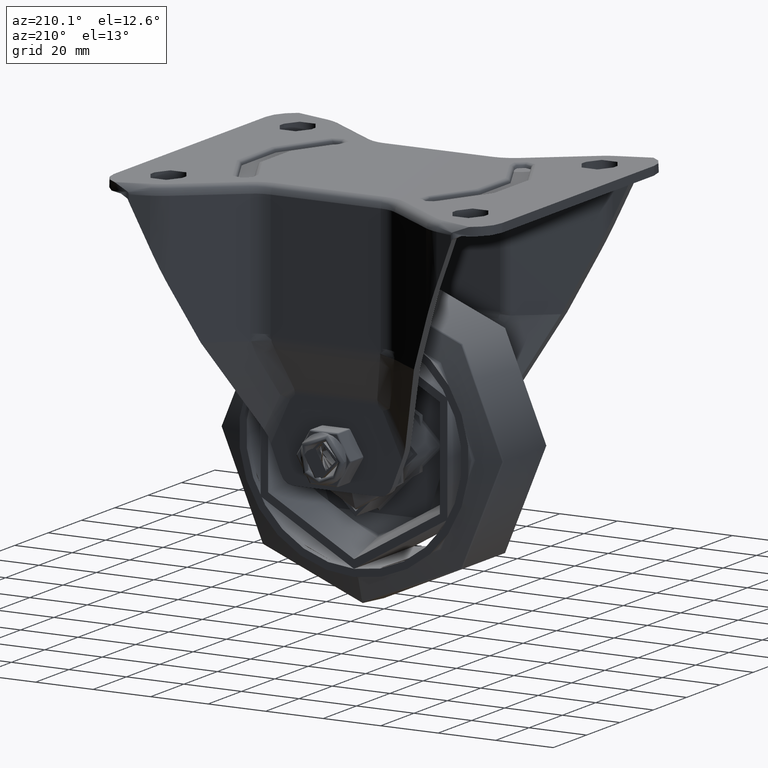
[diagram: clean part render]
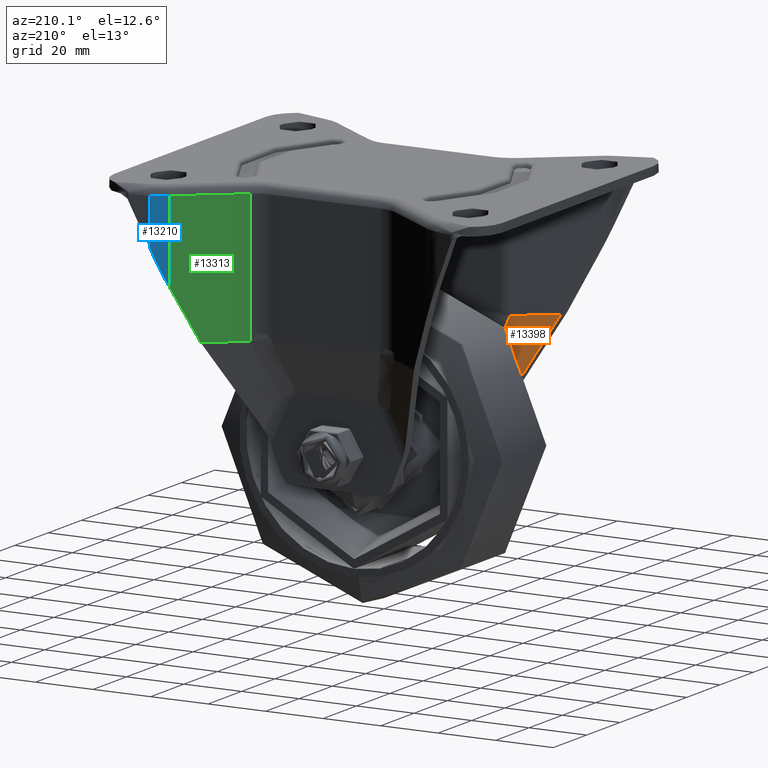
[diagram: same view with three faces highlighted in distinct colors, each labeled with its STEP entity id]
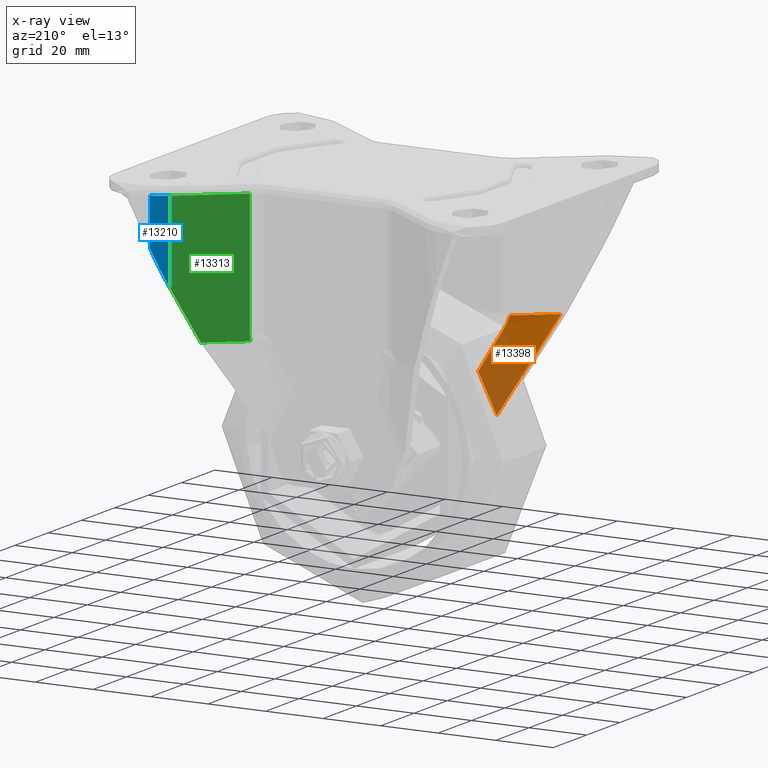
[diagram: x-ray of the same camera — body ghosted, the three highlighted faces saturated]
A machine part, auxiliary view with three faces highlighted in distinct colors.
The next image is the same camera in x-ray (body ghosted, the three faces saturated) — at least one of them is partly hidden behind the body in this view.
Their STEP definitions:

[orange] entity #13398 — the highlighted face is a freeform B-spline surface patch.
#436=B_SPLINE_SURFACE_WITH_KNOTS('',3,3,((#28918,#28919,#28920,#28921,#28922,
#28923,#28924),(#28925,#28926,#28927,#28928,#28929,#28930,#28931),(#28932,
#28933,#28934,#28935,#28936,#28937,#28938),(#28939,#28940,#28941,#28942,
#28943,#28944,#28945)),.UNSPECIFIED.,.F.,.F.,.F.,(4,4),(4,3,4),(0.,0.911532845210306),
(-0.000735062754812187,0.,0.971008509105159),.UNSPECIFIED.);
#1073=B_SPLINE_CURVE_WITH_KNOTS('',3,(#27915,#27916,#27917,#27918,#27919,
#27920,#27921,#27922),.UNSPECIFIED.,.F.,.F.,(4,2,2,4),(-0.00269783726248194,
-0.00178558597487094,-0.000788636968720414,-1.35210787664546E-5),
 .UNSPECIFIED.);
#1080=B_SPLINE_CURVE_WITH_KNOTS('',3,(#28947,#28948,#28949,#28950,#28951,
#28952,#28953,#28954,#28955,#28956),.UNSPECIFIED.,.F.,.F.,(4,2,2,2,4),(-0.014500870045644,
-0.00959288326135269,-0.00483362334931264,-0.00185908590428761,-1.14696131254162E-12),
 .UNSPECIFIED.);
#1081=B_SPLINE_CURVE_WITH_KNOTS('',3,(#28957,#28958,#28959,#28960,#28961,
#28962,#28963,#28964,#28965,#28966,#28967,#28968,#28969,#28970,#28971,#28972,
#28973,#28974,#28975,#28976,#28977,#28978,#28979,#28980,#28981,#28982,#28983,
#28984,#28985,#28986,#28987,#28988,#28989,#28990),.UNSPECIFIED.,.F.,.F.,
(4,3,3,3,3,3,3,3,3,3,3,4),(-0.0171500907924866,-0.0159287157768912,-0.0146462646759079,
-0.013322968069946,-0.0119346563959918,-0.0116755686776362,-0.00942650823116136,
-0.00715574318536571,-0.0058830384809795,-0.00344401637031448,-0.00226270710806904,
0.),.UNSPECIFIED.);
#1603=ELLIPSE('',#14534,0.68770137886881,0.528787078670853);
#1839=FACE_OUTER_BOUND('',#2676,.T.);
#2676=EDGE_LOOP('',(#10144,#10145,#10146,#10147,#10148,#10149,#10150));
#3557=LINE('',#19808,#4416);
#3640=LINE('',#24983,#4499);
#3658=LINE('',#27924,#4517);
#4416=VECTOR('',#16008,1000.);
#4499=VECTOR('',#16303,1000.);
#4517=VECTOR('',#16379,10.);
#5881=VERTEX_POINT('',#19805);
#5882=VERTEX_POINT('',#19807);
#5978=VERTEX_POINT('',#24981);
#6000=VERTEX_POINT('',#27913);
#6001=VERTEX_POINT('',#27914);
#6002=VERTEX_POINT('',#27923);
#6010=VERTEX_POINT('',#28946);
#7306=EDGE_CURVE('',#5881,#5882,#3557,.T.);
#7484=EDGE_CURVE('',#5881,#5978,#3640,.T.);
#7531=EDGE_CURVE('',#6000,#6001,#1073,.T.);
#7532=EDGE_CURVE('',#6001,#6002,#3658,.T.);
#7535=EDGE_CURVE('',#6002,#5978,#1603,.T.);
#7548=EDGE_CURVE('',#5882,#6010,#1080,.T.);
#7549=EDGE_CURVE('',#6010,#6000,#1081,.T.);
#10144=ORIENTED_EDGE('',*,*,#7548,.F.);
#10145=ORIENTED_EDGE('',*,*,#7306,.F.);
#10146=ORIENTED_EDGE('',*,*,#7484,.T.);
#10147=ORIENTED_EDGE('',*,*,#7535,.F.);
#10148=ORIENTED_EDGE('',*,*,#7532,.F.);
#10149=ORIENTED_EDGE('',*,*,#7531,.F.);
#10150=ORIENTED_EDGE('',*,*,#7549,.F.);
#13398=ADVANCED_FACE('',(#1839),#436,.T.);
#14534=AXIS2_PLACEMENT_3D('',#28030,#16382,#16383);
#16008=DIRECTION('',(0.357625806770445,0.449329672612695,-0.818661485378149));
#16303=DIRECTION('',(0.798041368930957,0.602602666335625,0.));
#16379=DIRECTION('',(-0.0951685898180181,-0.17735766607067,0.979534173879612));
#16382=DIRECTION('center_axis',(-0.600375902171138,0.795215730268854,0.0847391198040507));
#16383=DIRECTION('ref_axis',(-0.215162910905712,-0.262674973355881,0.940588528604867));
#19805=CARTESIAN_POINT('',(-37.0736842105259,-42.2401975779487,-48.5));
#19807=CARTESIAN_POINT('',(-24.1505953238113,-26.0033176082113,-78.0829745599499));
#19808=CARTESIAN_POINT('',(-37.0736842105259,-42.2401975779487,-48.5));
#24981=CARTESIAN_POINT('',(-24.7612659389834,-32.9430654137226,-48.5));
#24983=CARTESIAN_POINT('',(-14.854746810448,-25.4626326023796,-48.5));
#27913=CARTESIAN_POINT('',(-24.0783409680292,-32.1488740330452,-50.9420640327268));
#27914=CARTESIAN_POINT('',(-24.7086456063164,-32.9033243316156,-48.5000684487369));
#27915=CARTESIAN_POINT('Ctrl Pts',(-24.0783409680292,-32.1488740330452,
-50.9420640327269));
#27916=CARTESIAN_POINT('Ctrl Pts',(-24.1913904864551,-32.263530628627,-50.6841292392895));
#27917=CARTESIAN_POINT('Ctrl Pts',(-24.2916717076381,-32.3702651102411,
-50.4169537476059));
#27918=CARTESIAN_POINT('Ctrl Pts',(-24.4711433745801,-32.5723705070917,
-49.8440775787974));
#27919=CARTESIAN_POINT('Ctrl Pts',(-24.5474515340327,-32.6657077345469,
-49.5371557458694));
#27920=CARTESIAN_POINT('Ctrl Pts',(-24.6507544817582,-32.8063516705401,
-48.9858972124729));
#27921=CARTESIAN_POINT('Ctrl Pts',(-24.6849328416757,-32.8592070667624,
-48.7433867433074));
#27922=CARTESIAN_POINT('Ctrl Pts',(-24.7086455962577,-32.9033243231716,
-48.5000684484094));
#27923=CARTESIAN_POINT('',(-24.7091282409949,-32.9042228369908,-48.4951045381734));
#27924=CARTESIAN_POINT('',(-24.7086522709864,-32.9033367416968,-48.4999999556765));
#28030=CARTESIAN_POINT('Origin',(-24.7980277425615,-33.0421950714408,-47.8301763061915));
#28918=CARTESIAN_POINT('Ctrl Pts',(-37.0834779545459,-42.2525026736965,
-48.4775805859782));
#28919=CARTESIAN_POINT('Ctrl Pts',(-37.0802133732059,-42.2484009751139,
-48.4850537239855));
#28920=CARTESIAN_POINT('Ctrl Pts',(-37.0769487918659,-42.2442992765313,
-48.4925268619927));
#28921=CARTESIAN_POINT('Ctrl Pts',(-37.0736842105259,-42.2401975779487,
-48.5));
#28922=CARTESIAN_POINT('Ctrl Pts',(-32.761213963509,-36.8219061471855,-58.3719198425691));
#28923=CARTESIAN_POINT('Ctrl Pts',(-28.4487437164921,-31.4036147164222,
-68.2438396851382));
#28924=CARTESIAN_POINT('Ctrl Pts',(-24.1362734694752,-25.9853232856589,
-78.1157595277074));
#28925=CARTESIAN_POINT('Ctrl Pts',(-32.959799383173,-39.1375240329613,-48.4808190828924));
#28926=CARTESIAN_POINT('Ctrl Pts',(-32.9570236925434,-39.1341850086921,
-48.4872127219282));
#28927=CARTESIAN_POINT('Ctrl Pts',(-32.9542480019138,-39.130845984423,-48.4936063609641));
#28928=CARTESIAN_POINT('Ctrl Pts',(-32.9514723112842,-39.1275069601539,
-48.5));
#28929=CARTESIAN_POINT('Ctrl Pts',(-29.2848204474115,-34.7166985547542,
-56.9459154913573));
#28930=CARTESIAN_POINT('Ctrl Pts',(-25.6181685835389,-30.3058901493544,
-65.3918309827145));
#28931=CARTESIAN_POINT('Ctrl Pts',(-21.9515167196663,-25.8950817439547,
-73.8377464740718));
#28932=CARTESIAN_POINT('Ctrl Pts',(-28.8361208118001,-36.0225453922261,
-48.4840575798065));
#28933=CARTESIAN_POINT('Ctrl Pts',(-28.8338340118809,-36.0199690422704,
-48.489371719871));
#28934=CARTESIAN_POINT('Ctrl Pts',(-28.8315472119616,-36.0173926923148,
-48.4946858599355));
#28935=CARTESIAN_POINT('Ctrl Pts',(-28.8292604120424,-36.0148163423591,
-48.5));
#28936=CARTESIAN_POINT('Ctrl Pts',(-25.8084269313141,-32.6114909623229,
-55.5199111401454));
#28937=CARTESIAN_POINT('Ctrl Pts',(-22.7875934505857,-29.2081655822867,
-62.5398222802908));
#28938=CARTESIAN_POINT('Ctrl Pts',(-19.7667599698573,-25.8048402022504,
-69.5597334204362));
#28939=CARTESIAN_POINT('Ctrl Pts',(-24.7124422404271,-32.9075667514908,
-48.4872960767206));
#28940=CARTESIAN_POINT('Ctrl Pts',(-24.7106443312183,-32.9057530758487,
-48.4915307178137));
#28941=CARTESIAN_POINT('Ctrl Pts',(-24.7088464220095,-32.9039394002065,
-48.4957653589069));
#28942=CARTESIAN_POINT('Ctrl Pts',(-24.7070485128007,-32.9021257245643,
-48.5));
#28943=CARTESIAN_POINT('Ctrl Pts',(-22.3320334152166,-30.5062833698916,
-54.0939067889336));
#28944=CARTESIAN_POINT('Ctrl Pts',(-19.9570183176325,-28.1104410152189,
-59.6878135778671));
#28945=CARTESIAN_POINT('Ctrl Pts',(-17.5820032200484,-25.7145986605462,
-65.2817203668007));
#28946=CARTESIAN_POINT('',(-17.7764823568203,-25.8547808782059,-65.075907575153));
#28947=CARTESIAN_POINT('Ctrl Pts',(-24.1505953238113,-26.0033176082113,
-78.0829745599499));
#28948=CARTESIAN_POINT('Ctrl Pts',(-23.435674093525,-25.9937291602401,-76.6125512362007));
#28949=CARTESIAN_POINT('Ctrl Pts',(-22.7201541821809,-25.9827973710233,
-75.1426417211749));
#28950=CARTESIAN_POINT('Ctrl Pts',(-21.308715506678,-25.9570479625987,-72.2492174662659));
#28951=CARTESIAN_POINT('Ctrl Pts',(-20.6128885164119,-25.9423884564261,
-70.8256086675042));
#28952=CARTESIAN_POINT('Ctrl Pts',(-19.4790651674027,-25.9131091068086,
-68.5150254754163));
#28953=CARTESIAN_POINT('Ctrl Pts',(-19.0422310340548,-25.9005252264329,
-67.6270184502399));
#28954=CARTESIAN_POINT('Ctrl Pts',(-18.3303408599422,-25.8769636699582,
-66.1858335116835));
#28955=CARTESIAN_POINT('Ctrl Pts',(-18.056044140899,-25.8671490423172,-65.6319738429203));
#28956=CARTESIAN_POINT('Ctrl Pts',(-17.7810325368362,-25.8563686817571,
-65.0787391072436));
#28957=CARTESIAN_POINT('Ctrl Pts',(-17.7730970296749,-25.8543203370146,
-65.0705677216723));
#28958=CARTESIAN_POINT('Ctrl Pts',(-17.8929085077857,-25.9701559413622,
-64.8130663180271));
#28959=CARTESIAN_POINT('Ctrl Pts',(-18.0205867924371,-26.0942509778347,
-64.5363560508024));
#28960=CARTESIAN_POINT('Ctrl Pts',(-18.1543594949246,-26.224812854895,-64.2446493151019));
#28961=CARTESIAN_POINT('Ctrl Pts',(-18.2948216358689,-26.3619036098593,
-63.9383554908574));
#28962=CARTESIAN_POINT('Ctrl Pts',(-18.4420029108954,-26.5061240781601,
-63.6155279558732));
#28963=CARTESIAN_POINT('Ctrl Pts',(-18.5938314318279,-26.6553677324796,
-63.2810875308894));
#28964=CARTESIAN_POINT('Ctrl Pts',(-18.7504956245477,-26.8093647317187,
-62.9359953250827));
#28965=CARTESIAN_POINT('Ctrl Pts',(-18.9121076887586,-26.9687098071035,
-62.5785389701327));
#28966=CARTESIAN_POINT('Ctrl Pts',(-19.076371801066,-27.1310581053535,-62.214167869879));
#28967=CARTESIAN_POINT('Ctrl Pts',(-19.2487063961226,-27.3013827602281,
-61.8318948028624));
#28968=CARTESIAN_POINT('Ctrl Pts',(-19.4239599542717,-27.4750128614152,
-61.4420110238724));
#28969=CARTESIAN_POINT('Ctrl Pts',(-19.5994616103962,-27.6492098635049,
-61.0508528713303));
#28970=CARTESIAN_POINT('Ctrl Pts',(-19.6322138550874,-27.6817186327262,
-60.9778546569095));
#28971=CARTESIAN_POINT('Ctrl Pts',(-19.6649746896244,-27.714247066424,-60.9048121715343));
#28972=CARTESIAN_POINT('Ctrl Pts',(-19.6977266872077,-27.7467772600949,
-60.8317667473038));
#28973=CARTESIAN_POINT('Ctrl Pts',(-19.9820366605833,-28.0291618222256,
-60.1976819845239));
#28974=CARTESIAN_POINT('Ctrl Pts',(-20.2656706517694,-28.3116691878295,
-59.5633924116898));
#28975=CARTESIAN_POINT('Ctrl Pts',(-20.5486749114702,-28.5942429346735,
-58.9289329363646));
#28976=CARTESIAN_POINT('Ctrl Pts',(-20.834410308999,-28.8795436646732,-58.2883505981707));
#28977=CARTESIAN_POINT('Ctrl Pts',(-21.1195037747349,-29.164912083308,-57.6475950340797));
#28978=CARTESIAN_POINT('Ctrl Pts',(-21.4040213835151,-29.4503189357374,
-57.0066613845148));
#28979=CARTESIAN_POINT('Ctrl Pts',(-21.5634860977733,-29.6102820479156,
-56.6474347562421));
#28980=CARTESIAN_POINT('Ctrl Pts',(-21.7227702469568,-29.7702577473486,
-56.2881514582583));
#28981=CARTESIAN_POINT('Ctrl Pts',(-21.8818879413646,-29.9302447475251,
-55.9288051655897));
#28982=CARTESIAN_POINT('Ctrl Pts',(-22.1868224430767,-30.2368451941994,
-55.2401508766697));
#28983=CARTESIAN_POINT('Ctrl Pts',(-22.4911330850238,-30.5434752913888,
-54.5512854698765));
#28984=CARTESIAN_POINT('Ctrl Pts',(-22.7948748004386,-30.8500961431907,
-53.8622239934294));
#28985=CARTESIAN_POINT('Ctrl Pts',(-22.9419882276523,-30.9986040434049,
-53.5284858527114));
#28986=CARTESIAN_POINT('Ctrl Pts',(-23.0889684676705,-31.147110200779,-53.1947011145512));
#28987=CARTESIAN_POINT('Ctrl Pts',(-23.2358232821721,-31.2956125677967,
-52.8608681317169));
#28988=CARTESIAN_POINT('Ctrl Pts',(-23.5171123935394,-31.5800574393938,
-52.2214367082038));
#28989=CARTESIAN_POINT('Ctrl Pts',(-23.7979380216259,-31.8644849646674,
-51.5818339058474));
#28990=CARTESIAN_POINT('Ctrl Pts',(-24.0783409680292,-32.1488740330452,
-50.9420640327269));

[blue] entity #13210 — the highlighted cylindrical surface (partial cylindrical patch) has radius 18 mm, axis along (0, 0, 1).
#1583=ELLIPSE('',#14266,44.9648432851629,18.);
#1651=FACE_OUTER_BOUND('',#2467,.T.);
#2467=EDGE_LOOP('',(#9121,#9122,#9123,#9124));
#3465=LINE('',#19088,#4324);
#3466=LINE('',#19091,#4325);
#4324=VECTOR('',#15652,1000.);
#4325=VECTOR('',#15655,1000.);
#5159=CIRCLE('',#14265,18.);
#5736=VERTEX_POINT('',#19054);
#5747=VERTEX_POINT('',#19085);
#5748=VERTEX_POINT('',#19087);
#5749=VERTEX_POINT('',#19089);
#7104=EDGE_CURVE('',#5747,#5736,#5159,.T.);
#7105=EDGE_CURVE('',#5748,#5736,#3465,.T.);
#7106=EDGE_CURVE('',#5749,#5748,#1583,.T.);
#7107=EDGE_CURVE('',#5747,#5749,#3466,.T.);
#9121=ORIENTED_EDGE('',*,*,#7104,.T.);
#9122=ORIENTED_EDGE('',*,*,#7105,.F.);
#9123=ORIENTED_EDGE('',*,*,#7106,.F.);
#9124=ORIENTED_EDGE('',*,*,#7107,.F.);
#13013=CYLINDRICAL_SURFACE('',#14264,18.);
#13210=ADVANCED_FACE('',(#1651),#13013,.T.);
#14264=AXIS2_PLACEMENT_3D('',#19084,#15648,#15649);
#14265=AXIS2_PLACEMENT_3D('',#19086,#15650,#15651);
#14266=AXIS2_PLACEMENT_3D('',#19090,#15653,#15654);
#15648=DIRECTION('center_axis',(0.,0.,1.));
#15649=DIRECTION('ref_axis',(-0.465548696224649,0.885022266072176,0.));
#15650=DIRECTION('center_axis',(0.,0.,-1.));
#15651=DIRECTION('ref_axis',(-0.465548696224649,0.885022266072176,0.));
#15652=DIRECTION('',(0.,0.,1.));
#15653=DIRECTION('center_axis',(0.91637858083464,-9.29511850643874E-34,
-0.400312748469858));
#15654=DIRECTION('ref_axis',(-0.400312748469858,1.92897756250961E-17,-0.91637858083464));
#15655=DIRECTION('',(0.,0.,-1.));
#19054=CARTESIAN_POINT('',(49.7996533288157,54.4332177762722,-3.));
#19084=CARTESIAN_POINT('Origin',(55.4917531171189,37.356918411363,0.));
#19085=CARTESIAN_POINT('',(44.6449051230776,51.7216630521202,-3.));
#19086=CARTESIAN_POINT('Origin',(55.4917531171189,37.356918411363,-3.));
#19087=CARTESIAN_POINT('',(49.7996533288157,54.4332177762722,-19.368263464155));
#19088=CARTESIAN_POINT('',(49.7996533288157,54.4332177762722,0.));
#19089=CARTESIAN_POINT('',(44.6449051230776,51.7216630521202,-31.1682894772908));
#19090=CARTESIAN_POINT('Origin',(55.4917531171189,37.356918411363,-6.33815551502699));
#19091=CARTESIAN_POINT('',(44.6449051230776,51.7216630521202,0.));

[green] entity #13313 — the highlighted planar face has unit normal (-0.6026, 0.798, 0).
#662=PLANE('',#14465);
#1594=ELLIPSE('',#14460,36.5083017866152,22.);
#1754=FACE_OUTER_BOUND('',#2584,.T.);
#2584=EDGE_LOOP('',(#9691,#9692,#9693,#9694,#9695,#9696));
#3466=LINE('',#19091,#4325);
#3467=LINE('',#19096,#4326);
#3475=LINE('',#19128,#4334);
#3578=LINE('',#19894,#4437);
#3617=LINE('',#20995,#4476);
#4325=VECTOR('',#15655,1000.);
#4326=VECTOR('',#15660,999.999999999999);
#4334=VECTOR('',#15692,1000.);
#4437=VECTOR('',#16057,999.999999999999);
#4476=VECTOR('',#16190,999.999999999999);
#5747=VERTEX_POINT('',#19085);
#5749=VERTEX_POINT('',#19089);
#5751=VERTEX_POINT('',#19095);
#5763=VERTEX_POINT('',#19127);
#5909=VERTEX_POINT('',#19892);
#5954=VERTEX_POINT('',#20990);
#7107=EDGE_CURVE('',#5747,#5749,#3466,.T.);
#7109=EDGE_CURVE('',#5751,#5747,#3467,.T.);
#7125=EDGE_CURVE('',#5763,#5751,#3475,.T.);
#7343=EDGE_CURVE('',#5749,#5909,#3578,.T.);
#7421=EDGE_CURVE('',#5909,#5954,#3617,.T.);
#7425=EDGE_CURVE('',#5954,#5763,#1594,.T.);
#9691=ORIENTED_EDGE('',*,*,#7107,.T.);
#9692=ORIENTED_EDGE('',*,*,#7343,.T.);
#9693=ORIENTED_EDGE('',*,*,#7421,.T.);
#9694=ORIENTED_EDGE('',*,*,#7425,.T.);
#9695=ORIENTED_EDGE('',*,*,#7125,.T.);
#9696=ORIENTED_EDGE('',*,*,#7109,.T.);
#13313=ADVANCED_FACE('',(#1754),#662,.T.);
#14460=AXIS2_PLACEMENT_3D('',#21751,#16193,#16194);
#14465=AXIS2_PLACEMENT_3D('',#21760,#16206,#16207);
#15655=DIRECTION('',(0.,0.,-1.));
#15660=DIRECTION('',(0.798041368930957,0.602602666335625,0.));
#15692=DIRECTION('',(0.,0.,1.));
#16057=DIRECTION('',(-0.383189096501707,-0.289346868787006,-0.877179859461764));
#16190=DIRECTION('',(-0.798041368930957,-0.602602666335625,0.));
#16193=DIRECTION('center_axis',(0.602602666335625,-0.798041368930957,1.8733382613368E-33));
#16194=DIRECTION('ref_axis',(0.798041368930957,0.602602666335625,-2.37579316358779E-17));
#16206=DIRECTION('center_axis',(-0.602602666335625,0.798041368930957,0.));
#16207=DIRECTION('ref_axis',(0.798041368930957,0.602602666335625,0.));
#19085=CARTESIAN_POINT('',(44.6449051230776,51.7216630521202,-3.));
#19089=CARTESIAN_POINT('',(44.6449051230776,51.7216630521202,-31.1682894772908));
#19091=CARTESIAN_POINT('',(44.6449051230776,51.7216630521202,0.));
#19095=CARTESIAN_POINT('',(25.1745872763195,37.0195863106904,-3.));
#19096=CARTESIAN_POINT('',(13.0444297082227,27.8600795755969,-3.));
#19127=CARTESIAN_POINT('',(25.1745872763195,37.0195863106904,-46.1555396199928));
#19128=CARTESIAN_POINT('',(25.1745872763195,37.0195863106904,0.));
#19892=CARTESIAN_POINT('',(37.0736842105259,46.0046186895811,-48.5));
#19894=CARTESIAN_POINT('',(43.9075023866454,51.1648487409367,-32.8563198377983));
#20990=CARTESIAN_POINT('',(25.0086798243239,36.8943092551019,-48.4999999927403));
#20995=CARTESIAN_POINT('',(46.9999999999998,53.5000000000002,-48.5));
#21751=CARTESIAN_POINT('Origin',(-3.96054785881542,15.0195863106904,-46.1555396199928));
#21760=CARTESIAN_POINT('Origin',(34.7499999999998,44.2500000000001,0.));